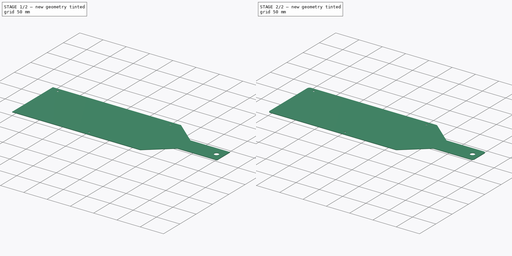
[diagram: build sequence overview — one tinted view per stage of 2, left to right]
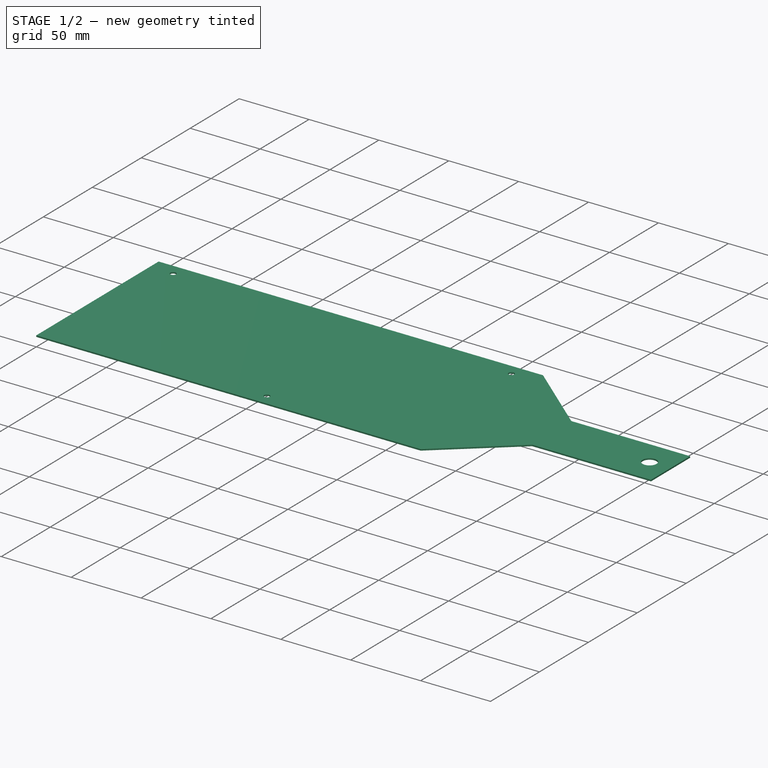
[diagram: stage 1 of 2 — iso view after this stage's code; geometry added in this stage tinted green]
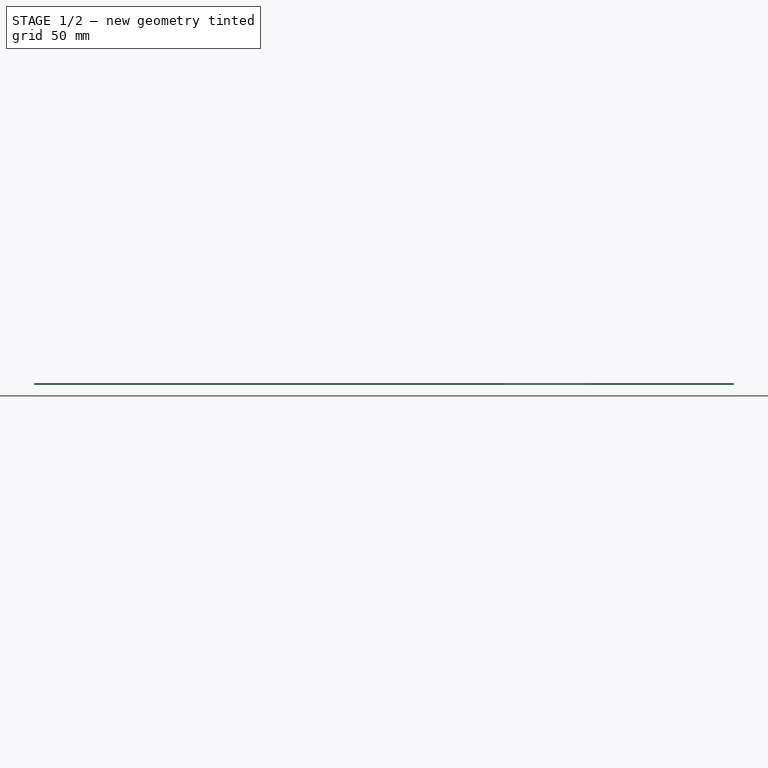
[diagram: stage 1 of 2 — front view after this stage's code; geometry added in this stage tinted green]
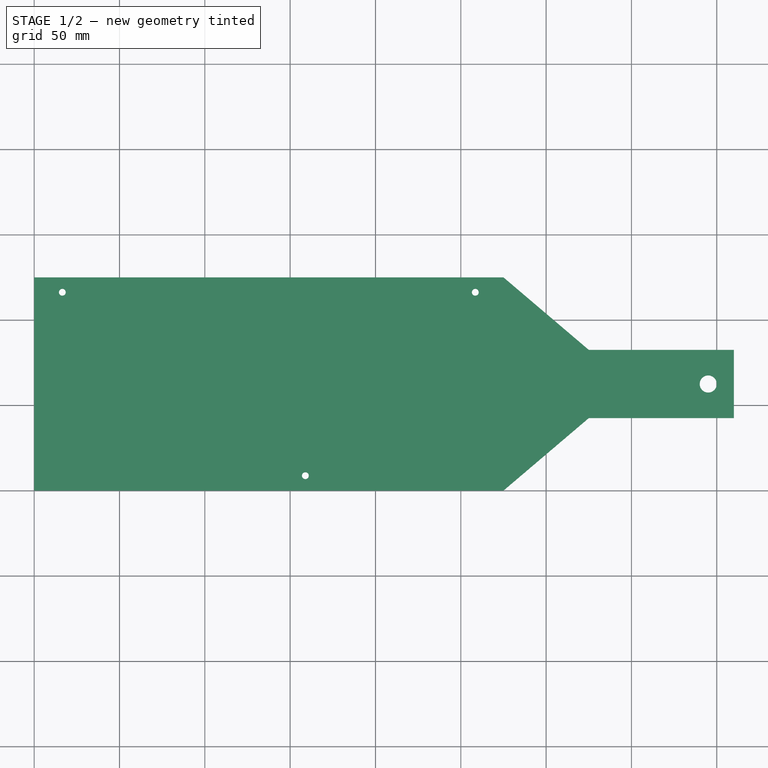
[diagram: stage 1 of 2 — top view after this stage's code; geometry added in this stage tinted green]
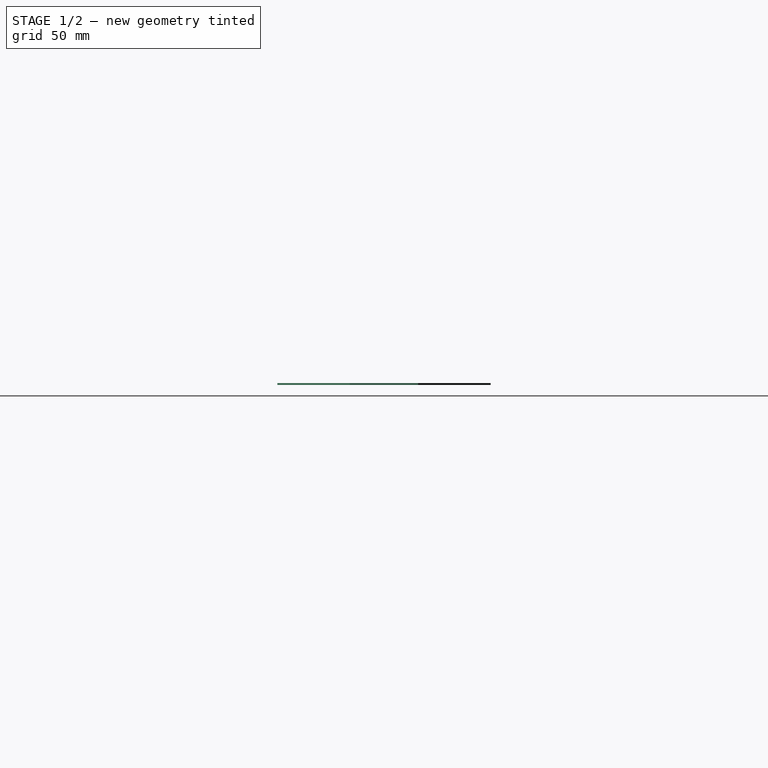
[diagram: stage 1 of 2 — right view after this stage's code; geometry added in this stage tinted green]
FCSTD DOCUMENT  (FreeCAD 1.0R39285 (Git))
Label: Epson_ha74b
License: All rights reserved
LicenseURL: https://en.wikipedia.org/wiki/All_rights_reserved
objects: Sketcher::SketchObject×1, PartDesign::Pad×1, PartDesign::Fillet×1, PartDesign::Body×1
note: 9 computed .brp shape members not serialized (recipe doc carries the construction recipe); baked Part::Feature solids carry a one-line shape summary decoded from their .brp

FEATURE [Sketcher::SketchObject] Sketch
  ArcFitTolerance = 1e-06
  AttachmentSupport = -> [XY_Plane]
  FullyConstrained = true
  MakeInternals = false
  MapMode = 5
  sketch-geometry (20):
    g0: LineSegment StartX=0 StartY=0 StartZ=0 EndX=275 EndY=0 EndZ=0
    g1: LineSegment StartX=275 StartY=125 StartZ=0 EndX=0 EndY=125 EndZ=0
    g2: LineSegment StartX=0 StartY=125 StartZ=0 EndX=0 EndY=0 EndZ=0
    g3: LineSegment [constr] StartX=275 StartY=125 StartZ=0 EndX=275 EndY=0 EndZ=0
    g4: LineSegment [constr] StartX=0 StartY=62.5 StartZ=0 EndX=410 EndY=62.5 EndZ=0
    g5: LineSegment StartX=275 StartY=125 StartZ=0 EndX=325 EndY=82.5 EndZ=0
    g6: LineSegment StartX=275 StartY=0 StartZ=0 EndX=325 EndY=42.5 EndZ=0
    g7: LineSegment [constr] StartX=325 StartY=82.5 StartZ=0 EndX=325 EndY=42.5 EndZ=0
    g8: LineSegment StartX=325 StartY=82.5 StartZ=0 EndX=410 EndY=82.5 EndZ=0
    g9: LineSegment StartX=410 StartY=82.5 StartZ=0 EndX=410 EndY=42.5 EndZ=0
    g10: LineSegment StartX=410 StartY=42.5 StartZ=0 EndX=325 EndY=42.5 EndZ=0
    g11: Circle CenterX=395 CenterY=62.5 CenterZ=0 NormalX=0 NormalY=0 NormalZ=1 AngleXU=0 Radius=5
    g12: Circle CenterX=258.5 CenterY=116.25 CenterZ=0 NormalX=0 NormalY=0 NormalZ=1 AngleXU=0 Radius=2
    g13: Circle CenterX=158.9 CenterY=8.75 CenterZ=0 NormalX=0 NormalY=0 NormalZ=1 AngleXU=0 Radius=2
    g14: Circle CenterX=16.5 CenterY=116.25 CenterZ=0 NormalX=0 NormalY=0 NormalZ=1 AngleXU=0 Radius=2
    g15: LineSegment [constr] StartX=158.9 StartY=8.75 StartZ=0 EndX=158.9 EndY=116.25 EndZ=0
    g16: LineSegment [constr] StartX=158.9 StartY=116.25 StartZ=0 EndX=258.5 EndY=116.25 EndZ=0
    g17: LineSegment [constr] StartX=16.5 StartY=116.25 StartZ=0 EndX=158.9 EndY=116.25 EndZ=0
    g18: LineSegment [constr] StartX=16.5 StartY=116.25 StartZ=0 EndX=0 EndY=116.25 EndZ=0
    g19: LineSegment [constr] StartX=258.5 StartY=116.25 StartZ=0 EndX=275 EndY=116.25 EndZ=0
  constraints (53):
    c: Coincident(g1,g2)
    c: Coincident(g2,g0)
    c: Horizontal(g0)
    c: Horizontal(g1)
    c: Vertical(g2)
    c: Distance(g0,g2) = 275
    c: Distance(g0,g1) = 125
    c: Coincident(g0,g-1)
    c: Coincident(g3,g1)
    c: Coincident(g3,g0)
    c: Vertical(g3)
    c: Symmetric(g2,g2,g4)
    c: Horizontal(g4)
    c: Coincident(g5,g1)
    c: Coincident(g6,g0)
    c: Coincident(g7,g5)
    c: Coincident(g7,g6)
    c: Symmetric(g6,g5,g4)
    c: Coincident(g8,g5)
    c: Horizontal(g8)
    c: Coincident(g9,g8)
    c: Vertical(g9)
    c: Coincident(g10,g9)
    c: Coincident(g10,g6)
    c: Horizontal(g10)
    c: PointOnObject(g4,g9)
    c: DistanceY(g9,g9) = 40
    c: Diameter(g11) = 10
    c: PointOnObject(g11,g4)
    c: Distance(g11,g9) = 15
    c: Diameter(g12) = 4
    c: Diameter(g13) = 4
    c: Diameter(g14) = 4
    c: Distance(g15) = 107.5
    c: Coincident(g15,g13)
    c: Symmetric(g15,g13,g4)
    c: Distance(g16) = 99.6
    c: Horizontal(g16)
    c: Coincident(g16,g15)
    c: Coincident(g12,g16)
    c: Coincident(g17,g14)
    c: Coincident(g17,g15)
    c: Horizontal(g17)
    c: DistanceX(g17,g17) = 142.4
    c: Coincident(g18,g14)
    c: PointOnObject(g18,g2)
    c: Horizontal(g18)
    c: Coincident(g19,g12)
    c: PointOnObject(g19,g3)
    c: Horizontal(g19)
    c: Equal(g19,g18)
    c: Distance(g7,g3) = 50
    c: DistanceX(g8,g8) = 85
FEATURE [PartDesign::Pad] Pad
  Direction = (0,0,1)
  Length = 1
  Length2 = 10
  Profile = -> Sketch
  ReferenceAxis = -> Sketch [N_Axis]
  Refine = true
  Suppressed = false
  Type = 0
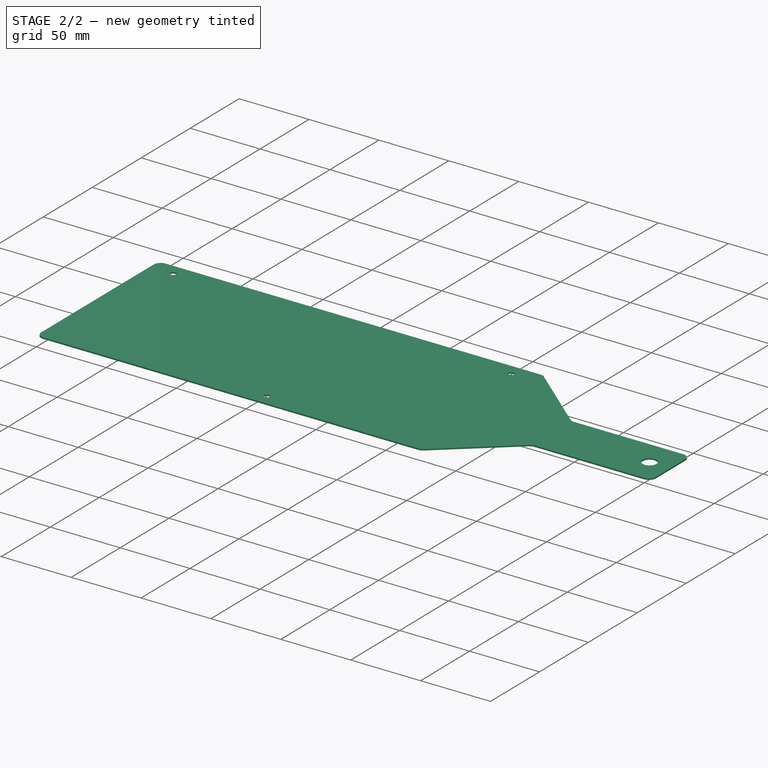
[diagram: stage 2 of 2 — iso view after this stage's code; geometry added in this stage tinted green]
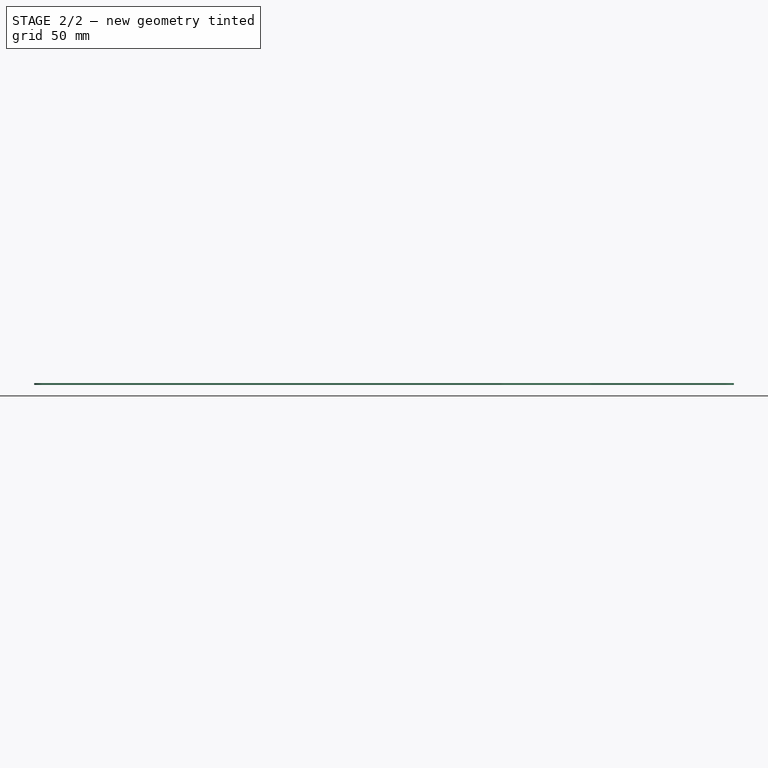
[diagram: stage 2 of 2 — front view after this stage's code; geometry added in this stage tinted green]
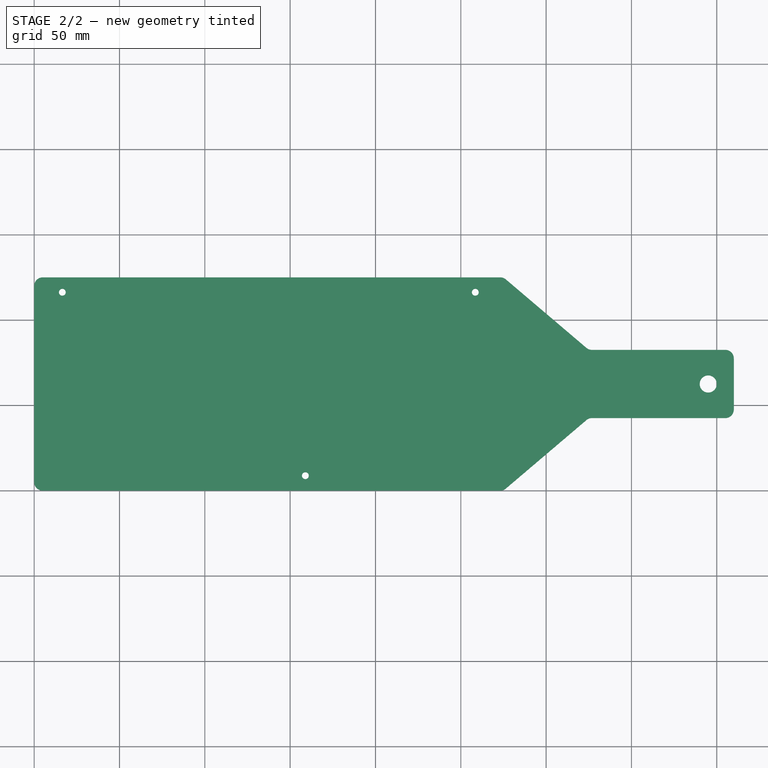
[diagram: stage 2 of 2 — top view after this stage's code; geometry added in this stage tinted green]
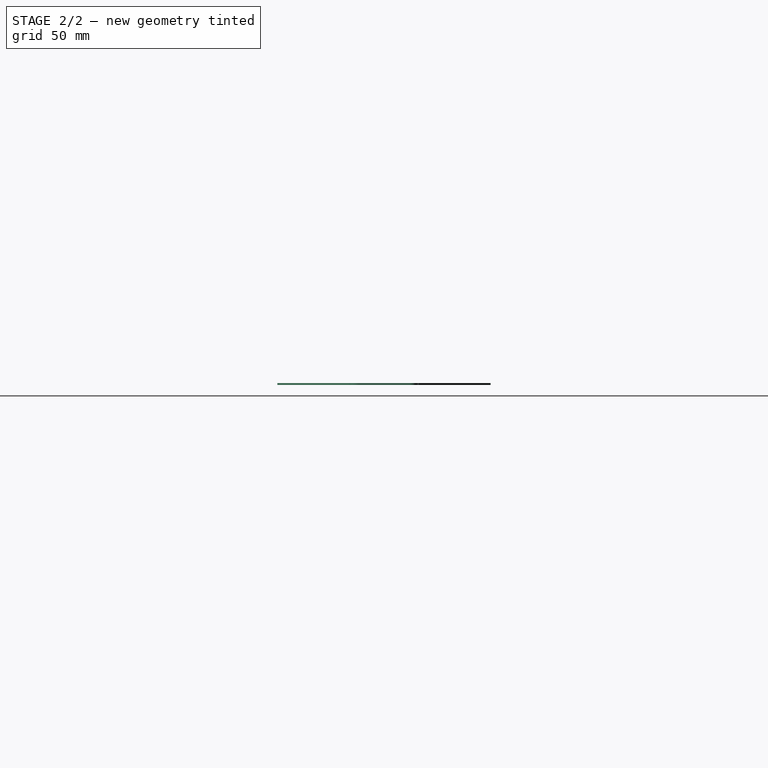
[diagram: stage 2 of 2 — right view after this stage's code; geometry added in this stage tinted green]
FEATURE [PartDesign::Fillet] Fillet
  Base = -> Pad [Edge5,Edge8,Edge11,Edge14,Edge17,Edge20,Edge1,Edge2]
  BaseFeature = -> Pad
  Radius = 5
  Refine = true
  SupportTransform = false
  Suppressed = false
  UseAllEdges = false
FEATURE [PartDesign::Body] Body
  AllowCompound = false
  Group = -> [Sketch,Pad,Fillet]
  Origin = -> Origin
  Tip = -> Fillet
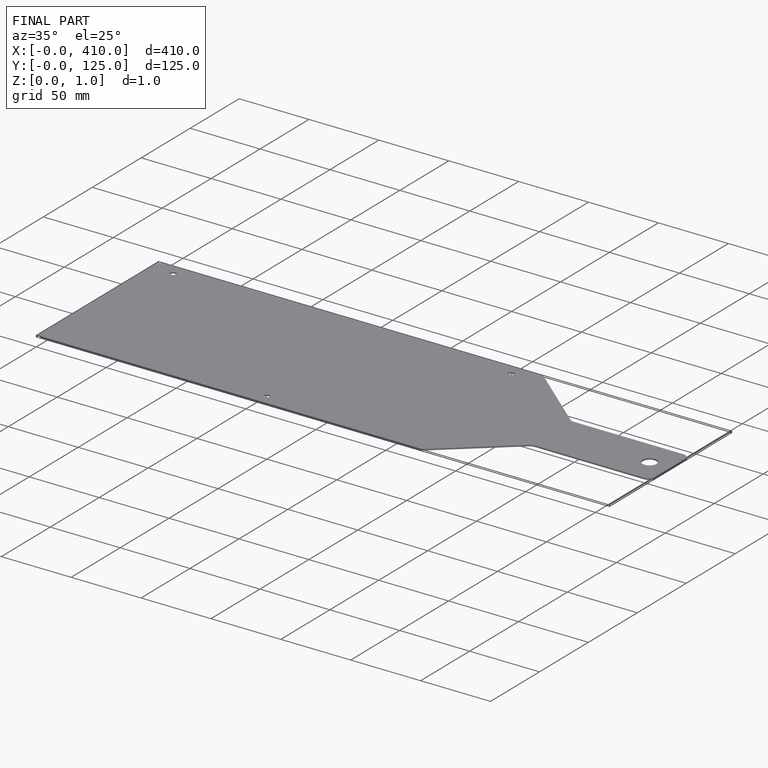
[diagram: finished part — iso view with bounding-box wireframe]
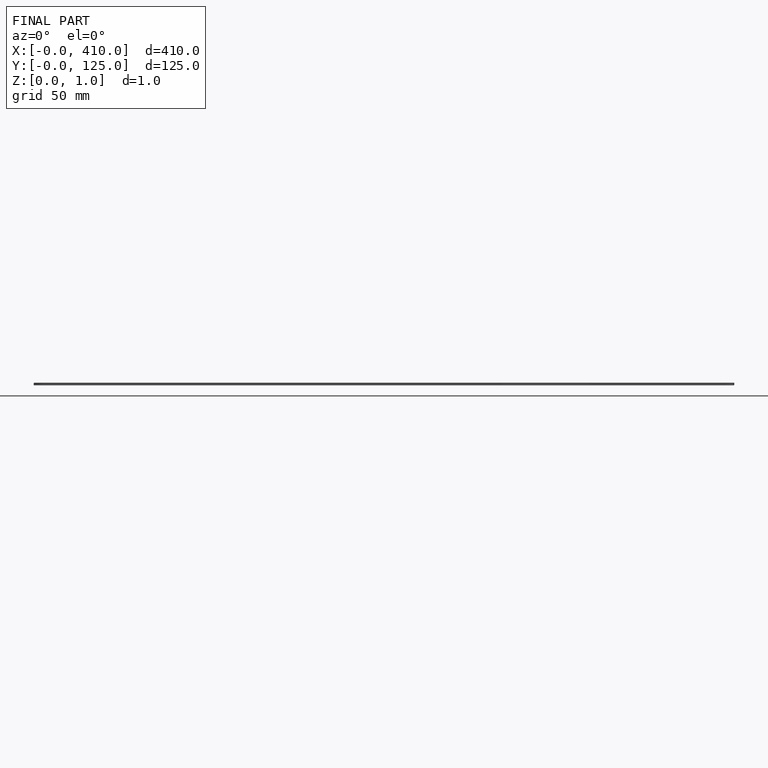
[diagram: finished part — front view with bounding-box wireframe]
